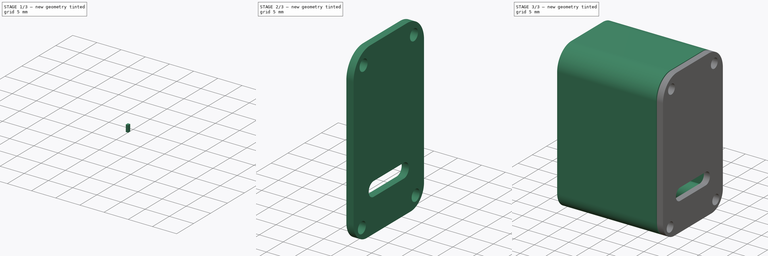
[diagram: build sequence overview — one tinted view per stage of 3, left to right]
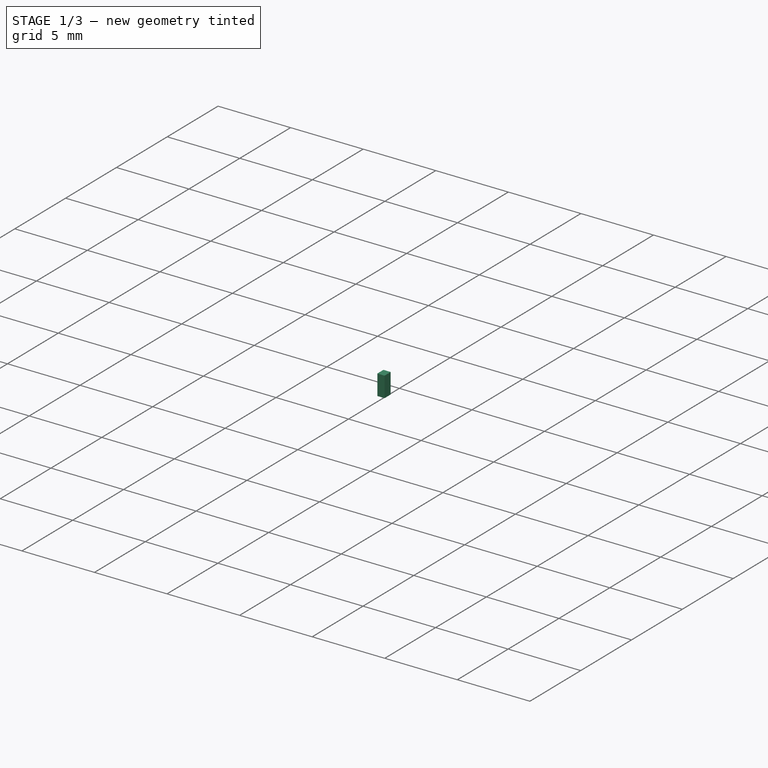
[diagram: stage 1 of 3 — iso view after this stage's code; geometry added in this stage tinted green]
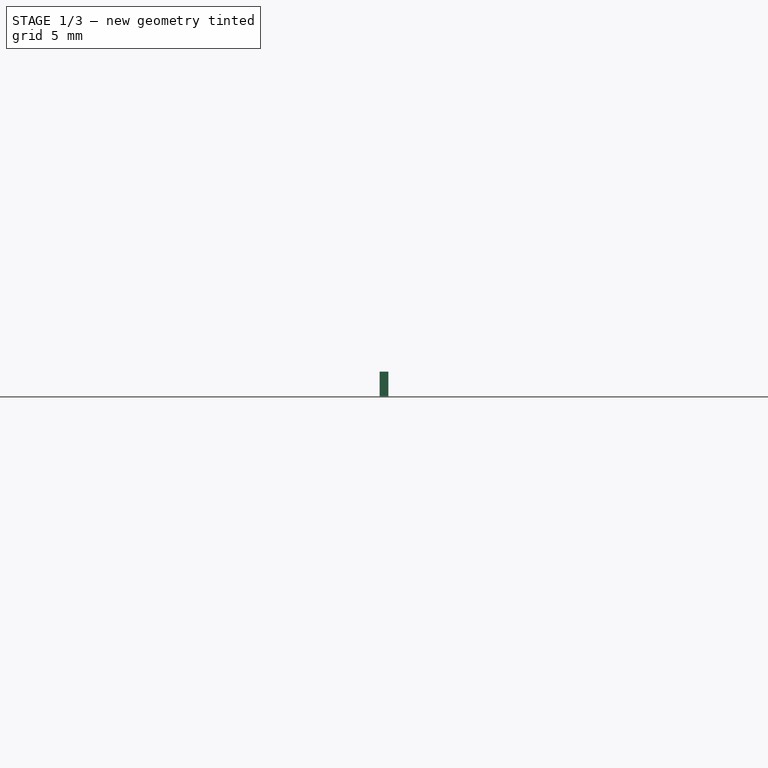
[diagram: stage 1 of 3 — front view after this stage's code; geometry added in this stage tinted green]
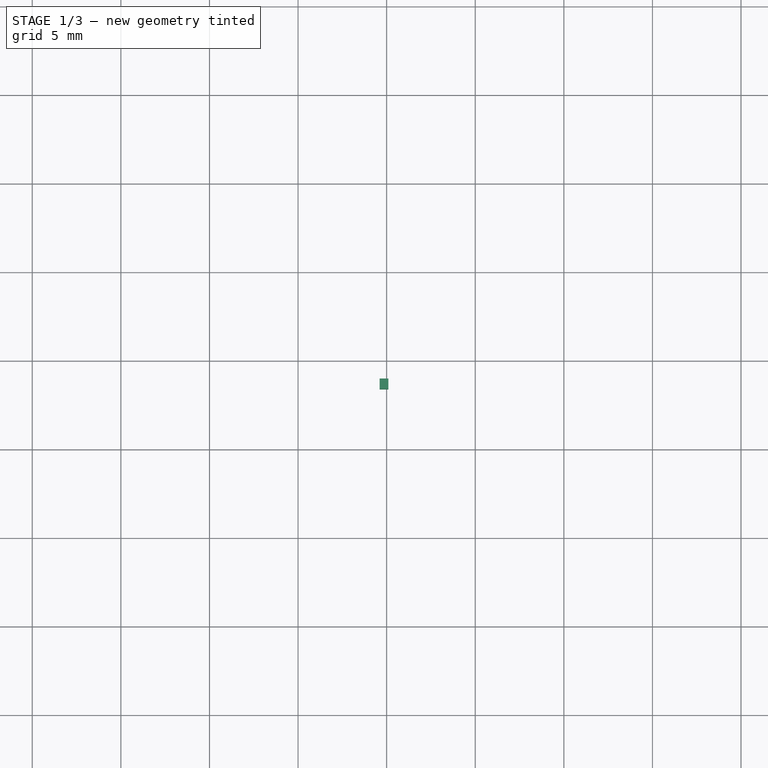
[diagram: stage 1 of 3 — top view after this stage's code; geometry added in this stage tinted green]
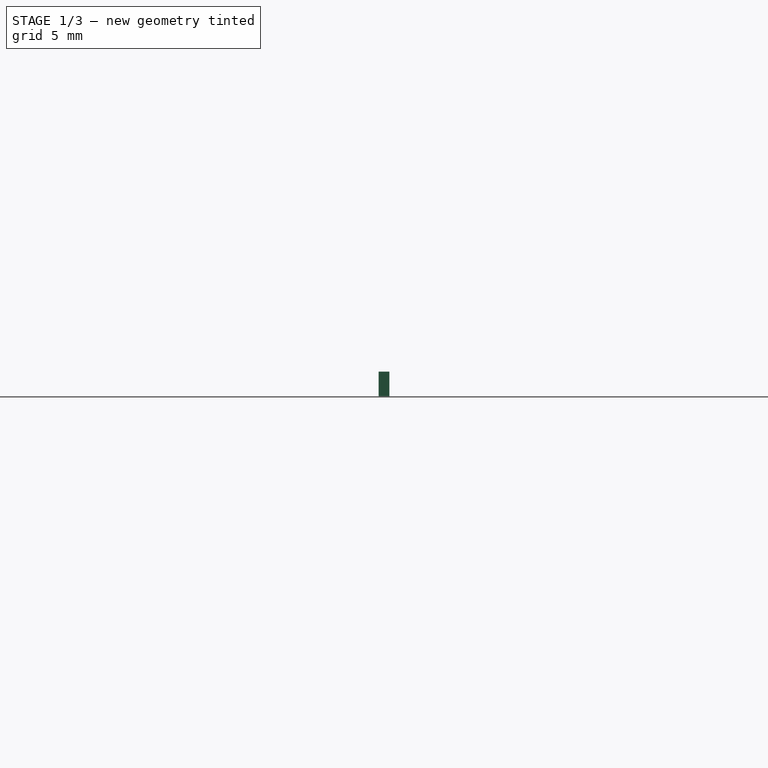
[diagram: stage 1 of 3 — right view after this stage's code; geometry added in this stage tinted green]
FCSTD DOCUMENT  (FreeCAD 0.21R33694 (Git))
Label: pico_rp2040_mini
License: All rights reserved
LicenseURL: http://en.wikipedia.org/wiki/All_rights_reserved
objects: Sketcher::SketchObject×4, Part::Extrusion×4, Part::Feature×1, Part::FeaturePython×1, Part::MultiFuse×1
note: 10 computed .brp shape members not serialized (recipe doc carries the construction recipe); baked Part::Feature solids carry a one-line shape summary decoded from their .brp

FEATURE [Sketcher::SketchObject] Sketch002
  ExternalGeometry = -> [pico_zero_usb005]
  FullyConstrained = false
  Placement = pos=(0,0,0) rot=(0.57735,-0.57735,-0.57735;2.0944rad)
  sketch-geometry (16):
    g0: LineSegment StartX=-5.535 StartY=8.96 StartZ=0 EndX=5.535 EndY=8.96 EndZ=0
    g1: LineSegment StartX=-6.535 StartY=-27.09 StartZ=0 EndX=6.535 EndY=-27.09 EndZ=0
    g2: LineSegment StartX=10.535 StartY=3.96 StartZ=0 EndX=10.535 EndY=-23.09 EndZ=0
    g3: LineSegment StartX=-10.535 StartY=3.96 StartZ=0 EndX=-10.535 EndY=-23.09 EndZ=0
    g4: ArcOfCircle CenterX=-6.535 CenterY=-23.09 CenterZ=0 NormalX=0 NormalY=0 NormalZ=1 AngleXU=0 Radius=4 StartAngle=3.14159 EndAngle=4.71239
    g5: ArcOfCircle CenterX=6.535 CenterY=-23.09 CenterZ=0 NormalX=0 NormalY=0 NormalZ=1 AngleXU=0 Radius=4 StartAngle=4.71239 EndAngle=6.28319
    g6: ArcOfCircle CenterX=-5.535 CenterY=3.96 CenterZ=0 NormalX=0 NormalY=0 NormalZ=1 AngleXU=0 Radius=5 StartAngle=1.5708 EndAngle=3.14159
    g7: ArcOfCircle CenterX=5.535 CenterY=3.96 CenterZ=0 NormalX=0 NormalY=0 NormalZ=1 AngleXU=0 Radius=5 StartAngle=1e-16 EndAngle=1.5708
    g8: Circle CenterX=-7.535 CenterY=5.96 CenterZ=0 NormalX=0 NormalY=0 NormalZ=1 AngleXU=0 Radius=1.2
    g9: Circle CenterX=7.535 CenterY=5.96 CenterZ=0 NormalX=0 NormalY=0 NormalZ=1 AngleXU=0 Radius=1.2
    g10: Circle CenterX=-8.035 CenterY=-24.59 CenterZ=0 NormalX=0 NormalY=0 NormalZ=1 AngleXU=0 Radius=1.2
    g11: Circle CenterX=8.035 CenterY=-24.59 CenterZ=0 NormalX=0 NormalY=0 NormalZ=1 AngleXU=0 Radius=1.2
    g12: LineSegment StartX=-4.5 StartY=-17.0911 StartZ=0 EndX=4.5 EndY=-17.0911 EndZ=0
    g13: LineSegment StartX=-4.5 StartY=-20.0911 StartZ=0 EndX=4.5 EndY=-20.0911 EndZ=0
    g14: ArcOfCircle CenterX=-4.5 CenterY=-18.5911 CenterZ=0 NormalX=0 NormalY=0 NormalZ=1 AngleXU=0 Radius=1.5 StartAngle=1.5708 EndAngle=4.71239
    g15: ArcOfCircle CenterX=4.5 CenterY=-18.5911 CenterZ=0 NormalX=0 NormalY=0 NormalZ=1 AngleXU=0 Radius=1.5 StartAngle=4.71239 EndAngle=7.85398
  constraints (25):
    c: Vertical(g2)
    c: Symmetric(g2,g3,g-2)
    c: Symmetric(g2,g3,g-2)
    c: Symmetric(g0,g0,g-2)
    c: Symmetric(g1,g1,g-2)
    c: Coincident(g5,g2)
    c: Tangent(g5,g1) = -1.5708
    c: Tangent(g4,g1) = -1.5708
    c: Tangent(g4,g3) = -1.5708
    c: Coincident(g6,g3)
    c: Tangent(g7,g2) = 1.5708
    c: Tangent(g7,g0) = 1.5708
    c: Tangent(g6,g0) = 1.5708
    c: Radius(g8) = 1.2
    c: Equal(g9,g8)
    c: Equal(g11,g10)
    c: Equal(g10,g9)
    c: Horizontal(g12)
    c: Tangent(g15,g12) = 1.5708
    c: Tangent(g15,g13) = -1.5708
    c: Tangent(g14,g12) = 1.5708
    c: Tangent(g14,g13) = -1.5708
    c: Radius(g15) = 1.5
    c: Symmetric(g13,g13,g-2)
    c: DistanceX(g12,g12) = 9
FEATURE [Part::Extrusion] Extrude002  label="back side extrude"
  Base = -> Sketch002
  Dir = (-1,0,0)
  DirMode = 2
  FaceMakerClass = Part::FaceMakerBullseye
  LengthFwd = 1.5
  LengthRev = 0
  Placement = pos=(26.6,0,0) rot=(0,0,1;0rad)
  Solid = true
  Symmetric = false
  expr: .Placement.Base.x = 26.6 mm
FEATURE [Sketcher::SketchObject] Sketch003
  FullyConstrained = false
  Placement = pos=(0,0,0) rot=(0.57735,0.57735,0.57735;2.0944rad)
  sketch-geometry (4):
    g0: LineSegment StartX=-6.59623 StartY=-1.21804 StartZ=0 EndX=-5.99623 EndY=-1.21804 EndZ=0
    g1: LineSegment StartX=-5.99623 StartY=-1.21804 StartZ=0 EndX=-5.99623 EndY=-2.61804 EndZ=0
    g2: LineSegment StartX=-5.99623 StartY=-2.61804 StartZ=0 EndX=-6.59623 EndY=-2.61804 EndZ=0
    g3: LineSegment StartX=-6.59623 StartY=-2.61804 StartZ=0 EndX=-6.59623 EndY=-1.21804 EndZ=0
  constraints (10):
    c: Coincident(g0,g1)
    c: Coincident(g1,g2)
    c: Coincident(g2,g3)
    c: Coincident(g3,g0)
    c: Horizontal(g0)
    c: Horizontal(g2)
    c: Vertical(g1)
    c: Vertical(g3)
    c: DistanceY(g3,g3) = 1.4
    c: DistanceX(g2,g2) = 0.6
FEATURE [Part::Extrusion] Extrude003  label="tooth extrude"
  Base = -> Sketch003
  Dir = (1,0,0)
  DirMode = 2
  FaceMakerClass = Part::FaceMakerBullseye
  LengthFwd = 0.5
  LengthRev = 0
  Placement = pos=(25.1,0,0) rot=(0,0,1;0rad)
  Reversed = true
  Solid = true
  Symmetric = false
  expr: .Placement.Base.x = <<back side extrude>>.Placement.Base.x - <<back side extrude>>.LengthFwd
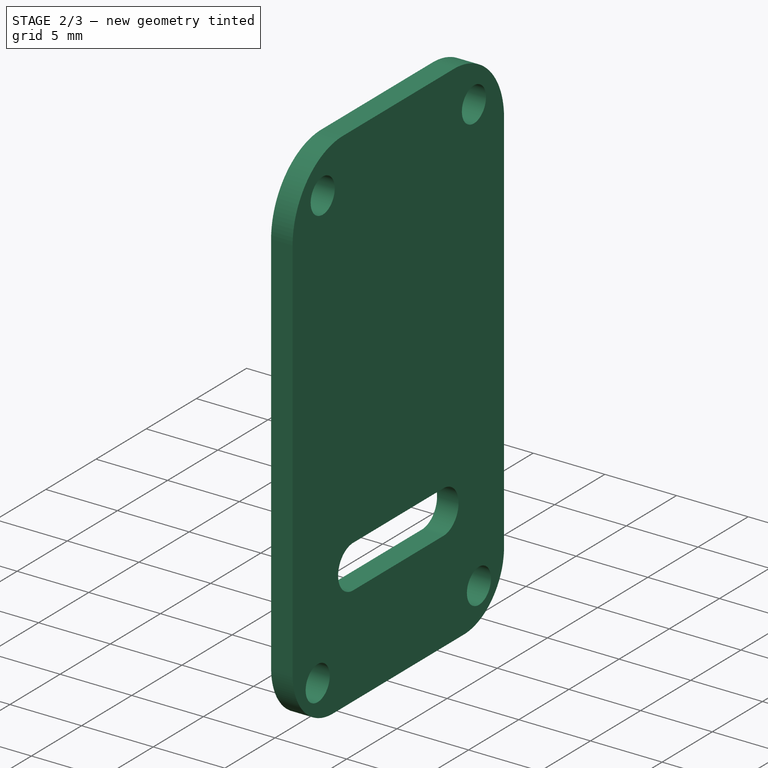
[diagram: stage 2 of 3 — iso view after this stage's code; geometry added in this stage tinted green]
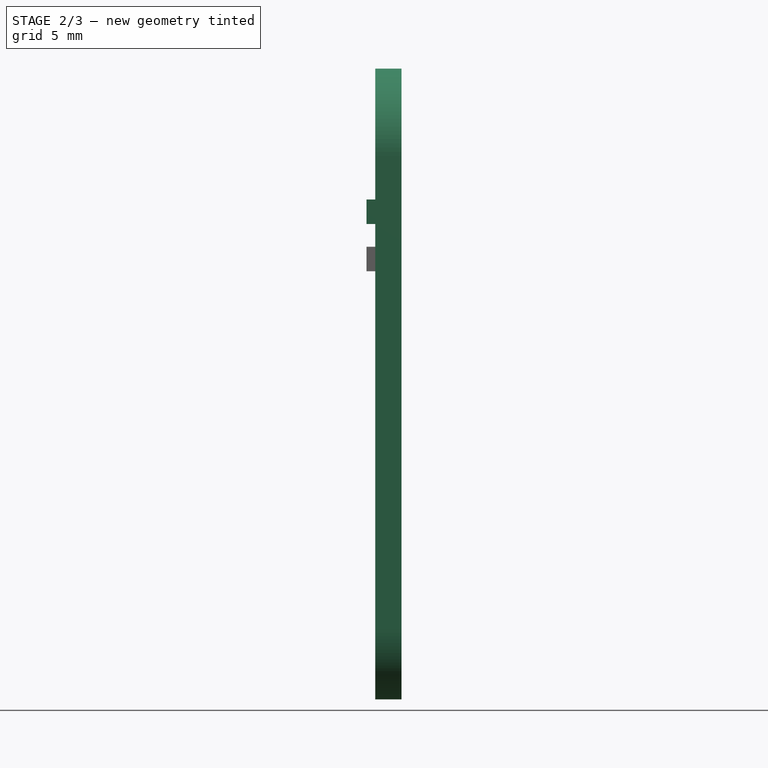
[diagram: stage 2 of 3 — front view after this stage's code; geometry added in this stage tinted green]
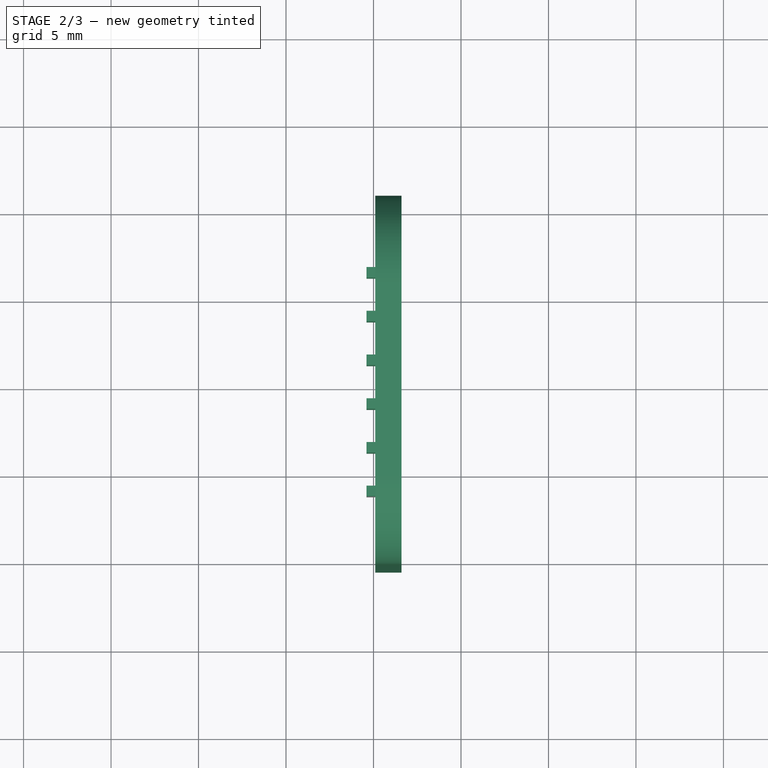
[diagram: stage 2 of 3 — top view after this stage's code; geometry added in this stage tinted green]
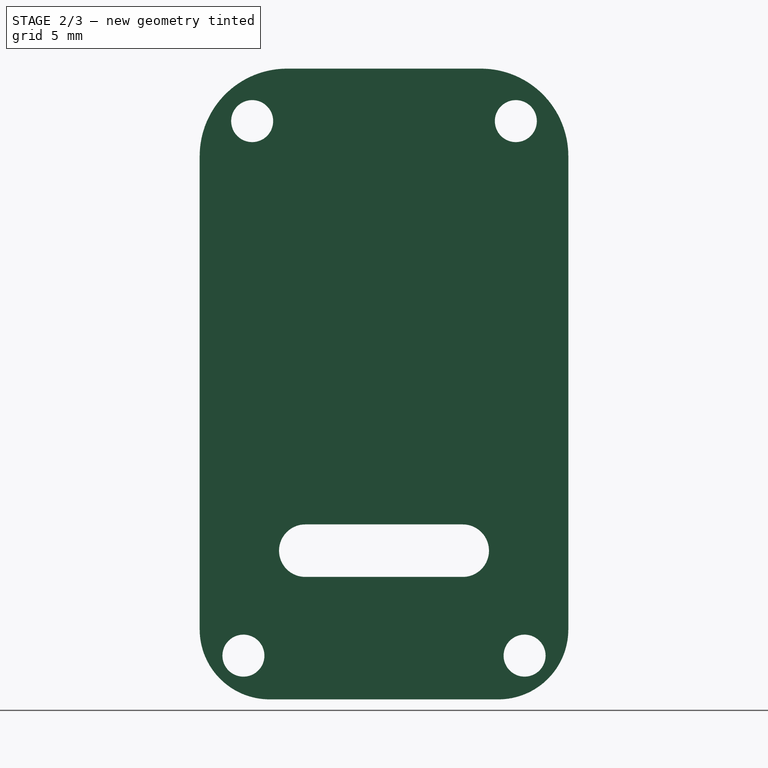
[diagram: stage 2 of 3 — right view after this stage's code; geometry added in this stage tinted green]
FEATURE [Part::FeaturePython] Array  label="teeth array"  # Draft array (typed FeaturePython)
  AlwaysSyncPlacement = false
  Angle = 360
  ArrayType = 0
  Axis = (0,0,1)
  Base = -> Extrude003
  Center = (0,0,0)
  Count = 12
  ExpandArray = false
  Fuse = false
  IntervalAxis = (0,0,0)
  IntervalX = (100,0,0)
  IntervalY = (0,2.5,0)
  IntervalZ = (0,0,2.7)
  NumberCircles = 3
  NumberPolar = 5
  NumberX = 1
  NumberY = 6
  NumberZ = 2
  PlacementList = 12 placements: [(25.1,0,0),(25.1,0,2.7),(25.1,2.5,0),(25.1,2.5,2.7),(25.1,5,0),(25.1,5,2.7),(25.1,7.5,0),(25.1,7.5,2.7),(25.1,10,0),(25.1,10,2.7),(25.1,12.5,0),(25.1,12.5,2.7)]
  RadialDistance = 50
  ScaleList = (12) [(1,1,1),(1,1,1),(1,1,1),(1,1,1),(1,1,1),(1,1,1),(1,1,1),(1,1,1),(1,1,1),(1,1,1),(1,1,1),(1,1,1)]
  Symmetry = 1
  TangentialDistance = 25
FEATURE [Part::MultiFuse] Fusion  label="back side fusion"
  Shapes = -> [Array,Extrude002]
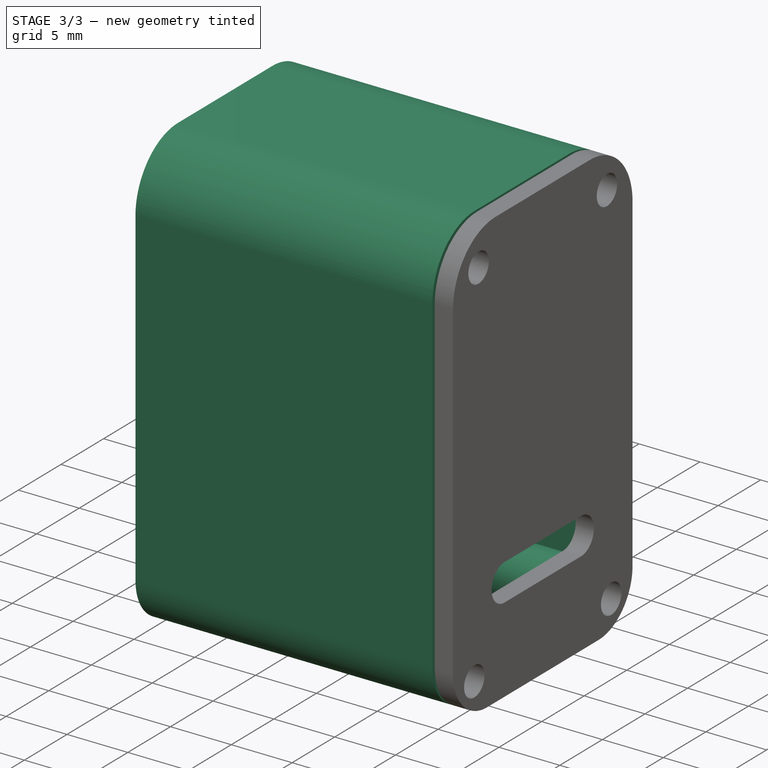
[diagram: stage 3 of 3 — iso view after this stage's code; geometry added in this stage tinted green]
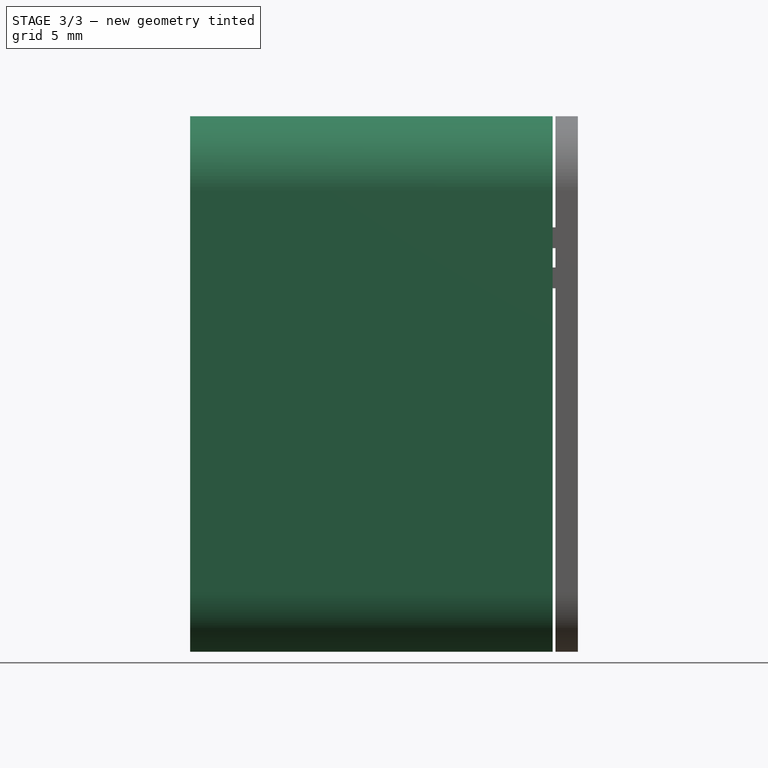
[diagram: stage 3 of 3 — front view after this stage's code; geometry added in this stage tinted green]
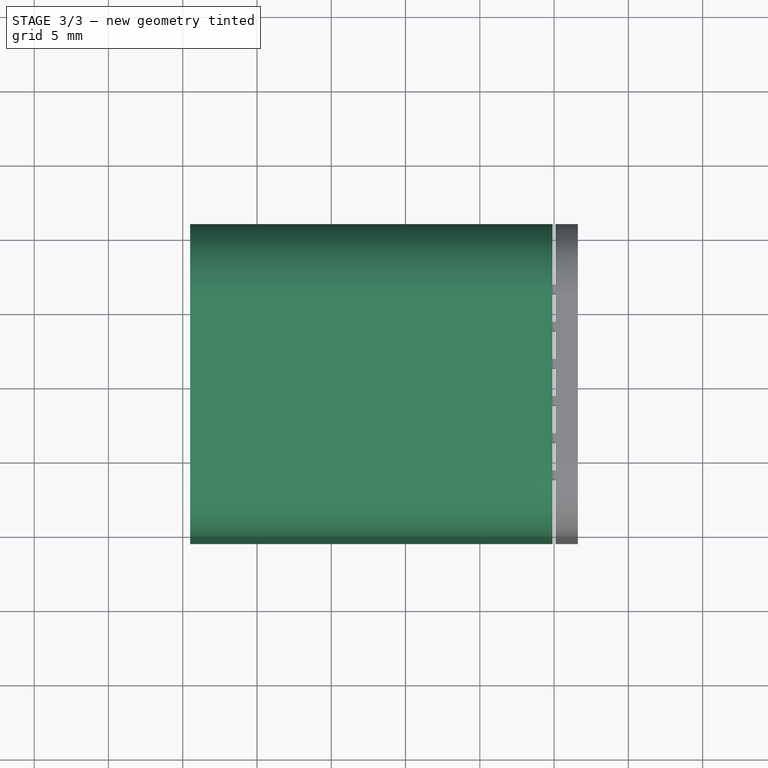
[diagram: stage 3 of 3 — top view after this stage's code; geometry added in this stage tinted green]
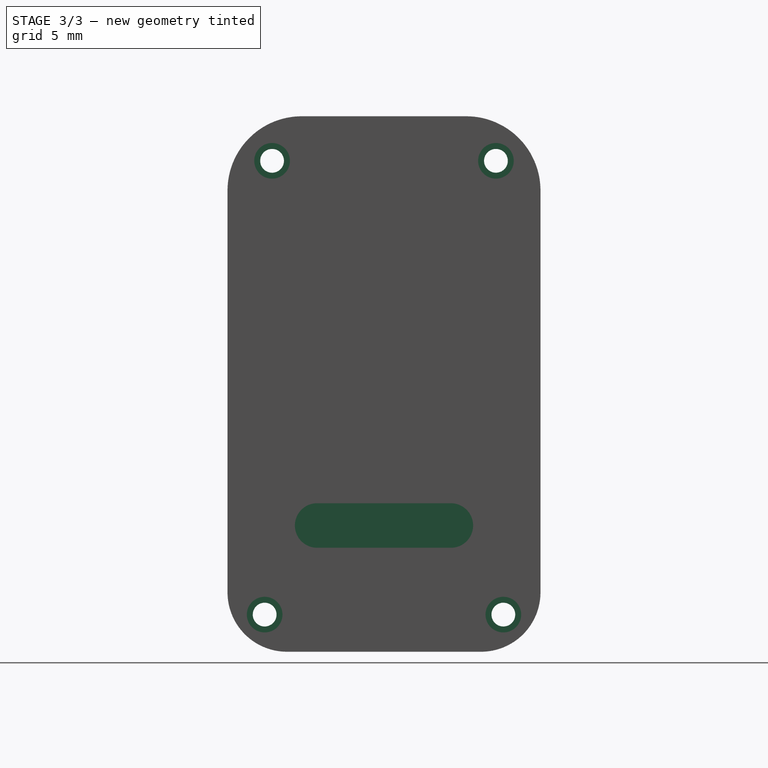
[diagram: stage 3 of 3 — right view after this stage's code; geometry added in this stage tinted green]
FEATURE [Part::Feature] pico_zero_usb005
  shape: large baked B-rep (44 MB .brp); summary skipped
FEATURE [Sketcher::SketchObject] Sketch
  ExternalGeometry = -> [pico_zero_usb005]
  FullyConstrained = true
  Placement = pos=(0,0,0) rot=(-0.57735,0.57735,0.57735;4.18879rad)
  sketch-geometry (20):
    g0: LineSegment StartX=-5.535 StartY=7.96 StartZ=0 EndX=5.535 EndY=7.96 EndZ=0
    g1: LineSegment StartX=-9.535 StartY=3.96 StartZ=0 EndX=-9.535 EndY=-23.09 EndZ=0
    g2: LineSegment StartX=9.535 StartY=3.96 StartZ=0 EndX=9.535 EndY=-23.09 EndZ=0
    g3: LineSegment StartX=-6.535 StartY=-26.09 StartZ=0 EndX=6.535 EndY=-26.09 EndZ=0
    g4: LineSegment StartX=-5.535 StartY=8.96 StartZ=0 EndX=5.535 EndY=8.96 EndZ=0
    g5: LineSegment StartX=-6.535 StartY=-27.09 StartZ=0 EndX=6.535 EndY=-27.09 EndZ=0
    g6: LineSegment StartX=10.535 StartY=3.96 StartZ=0 EndX=10.535 EndY=-23.09 EndZ=0
    g7: LineSegment StartX=-10.535 StartY=3.96 StartZ=0 EndX=-10.535 EndY=-23.09 EndZ=0
    g8: ArcOfCircle CenterX=-6.535 CenterY=-23.09 CenterZ=0 NormalX=0 NormalY=0 NormalZ=1 AngleXU=0 Radius=4 StartAngle=3.14159 EndAngle=4.71239
    g9: ArcOfCircle CenterX=6.535 CenterY=-23.09 CenterZ=0 NormalX=0 NormalY=0 NormalZ=1 AngleXU=0 Radius=4 StartAngle=4.71239 EndAngle=6.28319
    g10: ArcOfCircle CenterX=-5.535 CenterY=3.96 CenterZ=0 NormalX=0 NormalY=0 NormalZ=1 AngleXU=0 Radius=5 StartAngle=1.5708 EndAngle=3.14159
    g11: ArcOfCircle CenterX=5.535 CenterY=3.96 CenterZ=0 NormalX=0 NormalY=0 NormalZ=1 AngleXU=0 Radius=5 StartAngle=1e-16 EndAngle=1.5708
    g12: ArcOfCircle CenterX=-7.535 CenterY=5.96 CenterZ=0 NormalX=0 NormalY=0 NormalZ=1 AngleXU=0 Radius=2.82843 StartAngle=3.92699 EndAngle=7.06858
    g13: Circle CenterX=-7.535 CenterY=5.96 CenterZ=0 NormalX=0 NormalY=0 NormalZ=1 AngleXU=0 Radius=0.8
    g14: ArcOfCircle CenterX=7.535 CenterY=5.96 CenterZ=0 NormalX=0 NormalY=0 NormalZ=1 AngleXU=0 Radius=2.82843 StartAngle=2.35619 EndAngle=5.49779
    g15: Circle CenterX=7.535 CenterY=5.96 CenterZ=0 NormalX=0 NormalY=0 NormalZ=1 AngleXU=0 Radius=0.8
    g16: ArcOfCircle CenterX=-8.035 CenterY=-24.59 CenterZ=0 NormalX=0 NormalY=0 NormalZ=1 AngleXU=0 Radius=2.12132 StartAngle=5.49779 EndAngle=8.63938
    g17: ArcOfCircle CenterX=8.035 CenterY=-24.59 CenterZ=0 NormalX=0 NormalY=0 NormalZ=1 AngleXU=0 Radius=2.12132 StartAngle=0.785398 EndAngle=3.92699
    g18: Circle CenterX=-8.035 CenterY=-24.59 CenterZ=0 NormalX=0 NormalY=0 NormalZ=1 AngleXU=0 Radius=0.8
    g19: Circle CenterX=8.035 CenterY=-24.59 CenterZ=0 NormalX=0 NormalY=0 NormalZ=1 AngleXU=0 Radius=0.8
  constraints (50):
    c: Vertical(g1)
    c: Symmetric(g0,g0,g-2)
    c: Symmetric(g1,g2,g-2)
    c: Symmetric(g2,g1,g-2)
    c: DistanceX(g1,g-3) = 0.4
    c: DistanceY(g-3,g0) = 8
    c: DistanceY(g1,g-3) = 22
    c: Symmetric(g3,g3,g-2)
    c: DistanceY(g-3,g1) = 4
    c: Vertical(g6)
    c: Equal(g7,g1)
    c: Symmetric(g6,g7,g-2)
    c: Symmetric(g6,g7,g-2)
    c: Symmetric(g4,g4,g-2)
    c: Symmetric(g5,g5,g-2)
    c: Coincident(g9,g6)
    c: Tangent(g9,g5) = -1.5708
    c: Tangent(g8,g5) = -1.5708
    c: Tangent(g8,g7) = -1.5708
    c: Coincident(g10,g7)
    c: DistanceX(g2,g6) = 1
    c: Tangent(g11,g6) = 1.5708
    c: Tangent(g11,g4) = 1.5708
    c: DistanceY(g2,g6) = 0
    c: Equal(g4,g0)
    c: Tangent(g10,g4) = 1.5708
    c: Equal(g3,g5)
    c: DistanceY(g3,g-3) = 25
    c: Coincident(g12,g1)
    c: Coincident(g12,g0)
    c: DistanceY(g0,g4) = 1
    c: Coincident(g13,g12)
    c: Radius(g13) = 0.8
    c: Coincident(g14,g0)
    c: Coincident(g14,g2)
    c: PointOnObject(g11,g14)
    c: PointOnObject(g10,g12)
    c: Coincident(g15,g14)
    c: Equal(g15,g13)
    c: Coincident(g16,g1)
    c: Coincident(g16,g3)
    c: PointOnObject(g8,g16)
    c: Coincident(g17,g3)
    c: Coincident(g17,g2)
    c: PointOnObject(g9,g17)
    c: DistanceY(g5,g3) = 1
    c: Coincident(g18,g16)
    c: Coincident(g19,g17)
    c: Equal(g19,g18)
    c: Equal(g18,g15)
FEATURE [Part::Extrusion] Extrude  label="hull extrude"
  Base = -> Sketch
  Dir = (-1,0,0)
  DirMode = 2
  FaceMakerClass = Part::FaceMakerBullseye
  LengthFwd = 23.5
  LengthRev = 0
  Placement = pos=(1.4,0,0) rot=(0,0,1;0rad)
  Reversed = true
  Solid = true
  Symmetric = false
FEATURE [Sketcher::SketchObject] Sketch001
  ExternalGeometry = -> [pico_zero_usb005]
  FullyConstrained = false
  Placement = pos=(0,0,0) rot=(0.57735,-0.57735,-0.57735;2.0944rad)
  sketch-geometry (16):
    g0: LineSegment StartX=-5.535 StartY=8.96 StartZ=0 EndX=5.535 EndY=8.96 EndZ=0
    g1: LineSegment StartX=-6.535 StartY=-27.09 StartZ=0 EndX=6.535 EndY=-27.09 EndZ=0
    g2: LineSegment StartX=10.535 StartY=3.96 StartZ=0 EndX=10.535 EndY=-23.09 EndZ=0
    g3: LineSegment StartX=-10.535 StartY=3.96 StartZ=0 EndX=-10.535 EndY=-23.09 EndZ=0
    g4: ArcOfCircle CenterX=-6.535 CenterY=-23.09 CenterZ=0 NormalX=0 NormalY=0 NormalZ=1 AngleXU=0 Radius=4 StartAngle=3.14159 EndAngle=4.71239
    g5: ArcOfCircle CenterX=6.535 CenterY=-23.09 CenterZ=0 NormalX=0 NormalY=0 NormalZ=1 AngleXU=0 Radius=4 StartAngle=4.71239 EndAngle=6.28319
    g6: ArcOfCircle CenterX=-5.535 CenterY=3.96 CenterZ=0 NormalX=0 NormalY=0 NormalZ=1 AngleXU=0 Radius=5 StartAngle=1.5708 EndAngle=3.14159
    g7: ArcOfCircle CenterX=5.535 CenterY=3.96 CenterZ=0 NormalX=0 NormalY=0 NormalZ=1 AngleXU=0 Radius=5 StartAngle=1e-16 EndAngle=1.5708
    g8: Circle CenterX=-7.535 CenterY=5.96 CenterZ=0 NormalX=0 NormalY=0 NormalZ=1 AngleXU=0 Radius=1.1
    g9: Circle CenterX=7.535 CenterY=5.96 CenterZ=0 NormalX=0 NormalY=0 NormalZ=1 AngleXU=0 Radius=1.1
    g10: Circle CenterX=-8.035 CenterY=-24.59 CenterZ=0 NormalX=0 NormalY=0 NormalZ=1 AngleXU=0 Radius=1.1
    g11: Circle CenterX=8.035 CenterY=-24.59 CenterZ=0 NormalX=0 NormalY=0 NormalZ=1 AngleXU=0 Radius=1.1
    g12: LineSegment StartX=-3.00374 StartY=3.52289 StartZ=0 EndX=3.00374 EndY=3.52289 EndZ=0
    g13: ArcOfCircle CenterX=-3.00374 CenterY=1.62289 CenterZ=0 NormalX=0 NormalY=0 NormalZ=1 AngleXU=0 Radius=1.9 StartAngle=1.5708 EndAngle=4.71239
    g14: ArcOfCircle CenterX=3.00374 CenterY=1.62289 CenterZ=0 NormalX=0 NormalY=0 NormalZ=1 AngleXU=0 Radius=1.9 StartAngle=4.71239 EndAngle=7.85398
    g15: LineSegment StartX=-3.00374 StartY=-0.27711 StartZ=0 EndX=3.00374 EndY=-0.27711 EndZ=0
  constraints (24):
    c: Vertical(g2)
    c: Symmetric(g2,g3,g-2)
    c: Symmetric(g2,g3,g-2)
    c: Symmetric(g0,g0,g-2)
    c: Symmetric(g1,g1,g-2)
    c: Coincident(g5,g2)
    c: Tangent(g5,g1) = -1.5708
    c: Tangent(g4,g1) = -1.5708
    c: Tangent(g4,g3) = -1.5708
    c: Coincident(g6,g3)
    c: Tangent(g7,g2) = 1.5708
    c: Tangent(g7,g0) = 1.5708
    c: Tangent(g6,g0) = 1.5708
    c: Radius(g8) = 1.1
    c: Equal(g9,g8)
    c: Equal(g11,g10)
    c: Equal(g10,g9)
    c: Tangent(g13,g12) = 1.5708
    c: Tangent(g14,g12) = 1.5708
    c: Tangent(g15,g13) = -1.5708
    c: Tangent(g15,g14) = -1.5708
    c: DistanceY(g13,g12) = 3.8
    c: Symmetric(g13,g14,g-2)
    c: Horizontal(g12)
FEATURE [Part::Extrusion] Extrude001  label="usb side extrude"
  Base = -> Sketch001
  Dir = (-1,0,0)
  DirMode = 2
  FaceMakerClass = Part::FaceMakerBullseye
  LengthFwd = 1
  LengthRev = 0
  Placement = pos=(0.5,0,0) rot=(0,0,1;0rad)
  Reversed = true
  Solid = true
  Symmetric = false
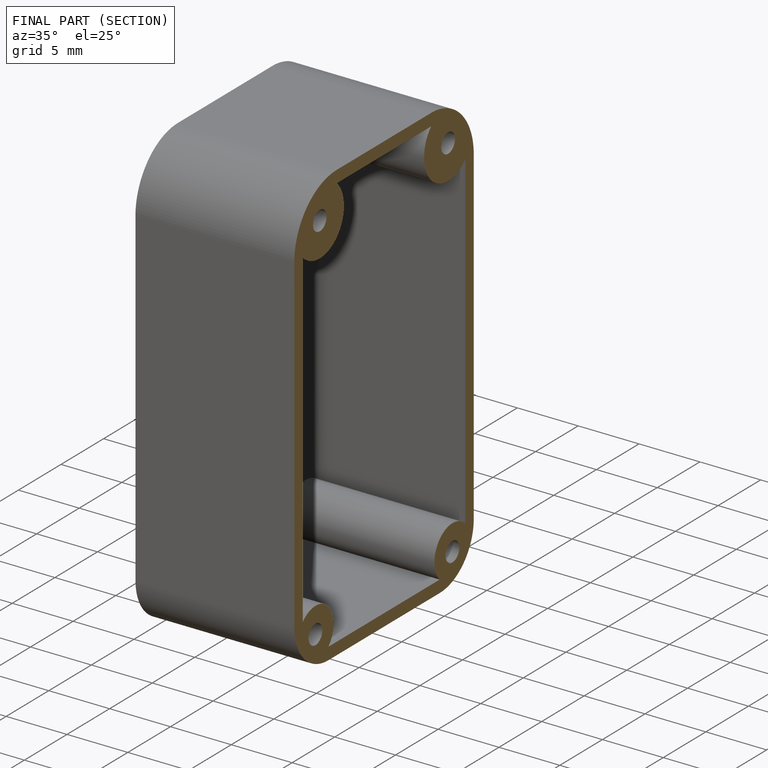
[diagram: finished part — half-section view (interior)]
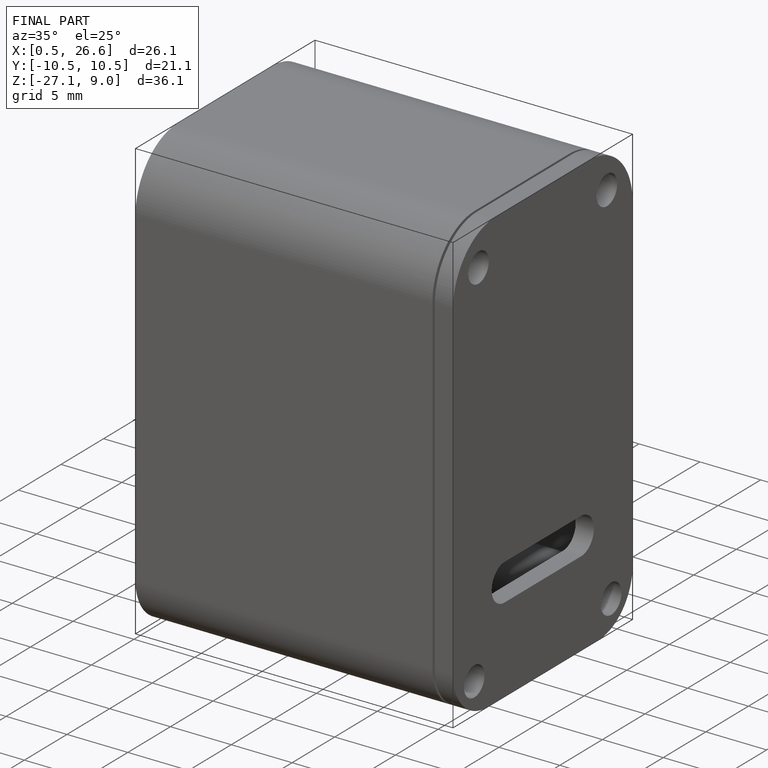
[diagram: finished part — iso view with bounding-box wireframe]
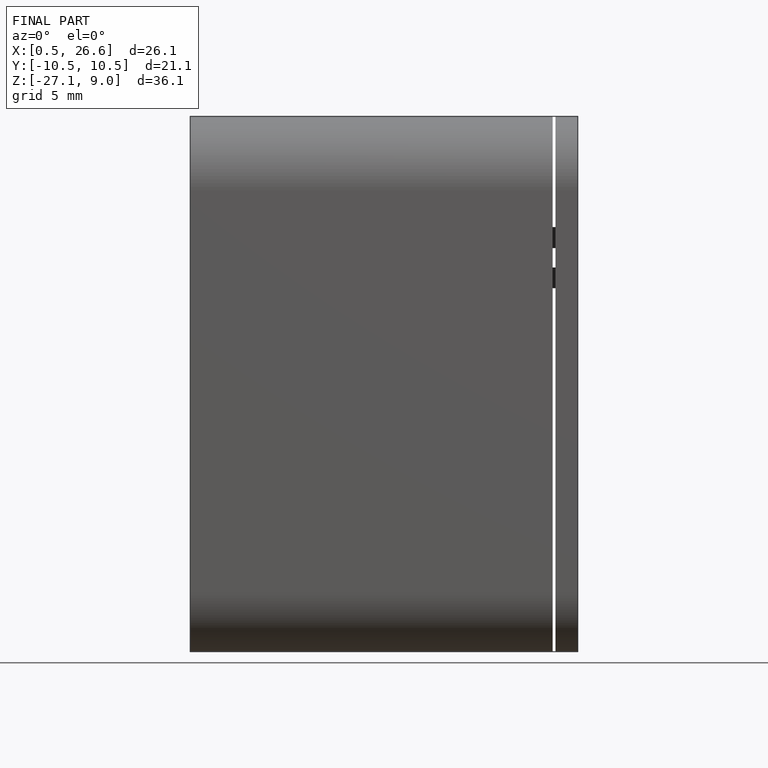
[diagram: finished part — front view with bounding-box wireframe]
